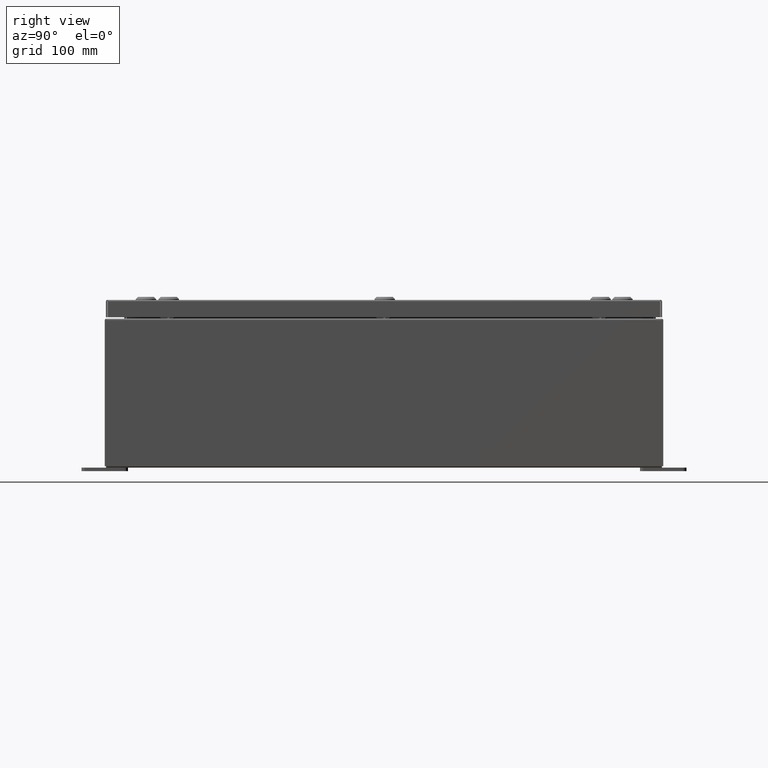
[diagram: clean part render]
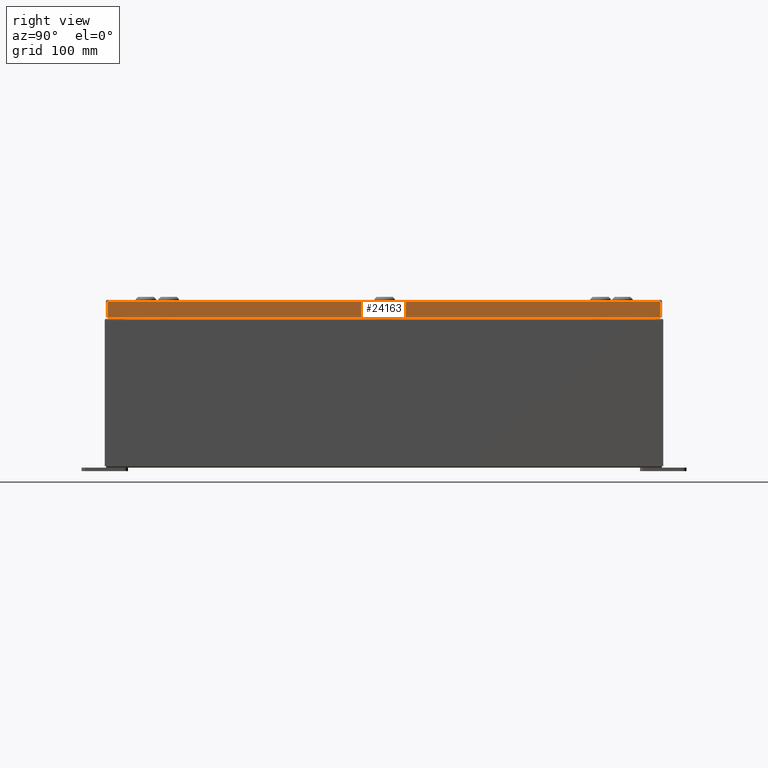
[diagram: same view with one face highlighted and labeled with its STEP entity id]
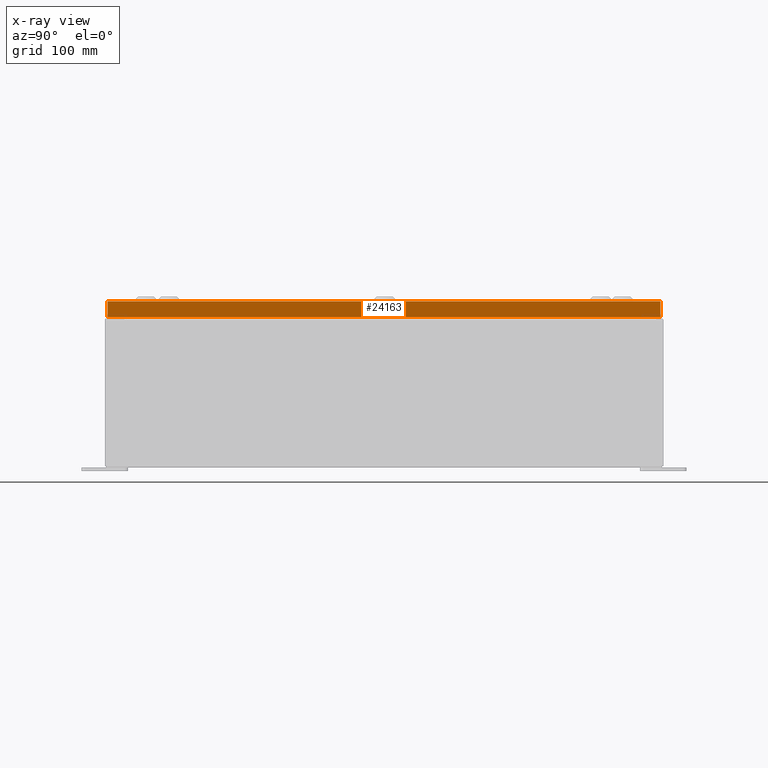
[diagram: x-ray of the same camera — body ghosted, the highlighted face saturated]
A machine part, right view. The second image highlights one B-rep face of the part: STEP entity #24163.
The next image is the same camera in x-ray: the body ghosted, the highlighted face saturated — about 0% of this face is hidden behind the body in this view.
In plain terms, the highlighted planar face has unit normal (1, 0, 0).
Its self-contained STEP definition (entity closure, byte-faithful):
#391 = CARTESIAN_POINT ( 'NONE',  ( 9.937500000000000000, 14.84865786437627800, -0.9376999999999997600 ) ) ;
#2302 = ORIENTED_EDGE ( 'NONE', *, *, #29045, .F. ) ;
#3659 = CARTESIAN_POINT ( 'NONE',  ( 9.937500000000000000, -14.84865786437625900, -0.9376999999999997600 ) ) ;
#3751 = PLANE ( 'NONE',  #23986 ) ;
#3866 = ORIENTED_EDGE ( 'NONE', *, *, #54339, .T. ) ;
#5350 = CARTESIAN_POINT ( 'NONE',  ( 9.937499999999998200, 0.0000000000000000000, -0.08770000000000008300 ) ) ;
#5363 = ORIENTED_EDGE ( 'NONE', *, *, #14456, .F. ) ;
#5750 = VERTEX_POINT ( 'NONE', #3659 ) ;
#8193 = CARTESIAN_POINT ( 'NONE',  ( 9.937499999999998200, 14.84865786437627100, 1.291143603374148100E-013 ) ) ;
#8716 = DIRECTION ( 'NONE',  ( 1.000000000000000000, 0.0000000000000000000, 2.532419924601866100E-015 ) ) ;
#9506 = LINE ( 'NONE', #8193, #47547 ) ;
#9882 = EDGE_CURVE ( 'NONE', #56703, #12730, #9506, .T. ) ;
#12730 = VERTEX_POINT ( 'NONE', #14619 ) ;
#13166 = DIRECTION ( 'NONE',  ( -2.532419924601866100E-015, -6.982962677686265900E-015, 1.000000000000000000 ) ) ;
#13794 = ORIENTED_EDGE ( 'NONE', *, *, #9882, .T. ) ;
#14456 = EDGE_CURVE ( 'NONE', #5750, #40301, #22545, .T. ) ;
#14619 = CARTESIAN_POINT ( 'NONE',  ( 9.937499999999998200, 14.84865786437626900, -0.08770000000000008300 ) ) ;
#19869 = DIRECTION ( 'NONE',  ( -2.532419924601866100E-015, -6.982962677686265900E-015, 1.000000000000000000 ) ) ;
#22545 = LINE ( 'NONE', #34607, #47337 ) ;
#23986 = AXIS2_PLACEMENT_3D ( 'NONE', #33484, #8716, #43471 ) ;
#24163 = ADVANCED_FACE ( 'NONE', ( #48649 ), #3751, .T. ) ;
#29045 = EDGE_CURVE ( 'NONE', #56703, #5750, #63019, .T. ) ;
#29341 = DIRECTION ( 'NONE',  ( 0.0000000000000000000, -1.000000000000000000, 0.0000000000000000000 ) ) ;
#33484 = CARTESIAN_POINT ( 'NONE',  ( 9.937499999999998200, 0.0000000000000000000, 2.542673665674262200E-014 ) ) ;
#34607 = CARTESIAN_POINT ( 'NONE',  ( 9.937499999999998200, -14.84865786437626400, -0.07469999999999980800 ) ) ;
#36007 = VECTOR ( 'NONE', #54520, 39.37007874015748100 ) ;
#38337 = VECTOR ( 'NONE', #29341, 39.37007874015748100 ) ;
#40301 = VERTEX_POINT ( 'NONE', #61291 ) ;
#43471 = DIRECTION ( 'NONE',  ( 2.532419924601866100E-015, 0.0000000000000000000, -1.000000000000000000 ) ) ;
#46816 = EDGE_LOOP ( 'NONE', ( #5363, #2302, #13794, #3866 ) ) ;
#47337 = VECTOR ( 'NONE', #19869, 39.37007874015748100 ) ;
#47547 = VECTOR ( 'NONE', #13166, 39.37007874015748100 ) ;
#48649 = FACE_OUTER_BOUND ( 'NONE', #46816, .T. ) ;
#54339 = EDGE_CURVE ( 'NONE', #12730, #40301, #60681, .T. ) ;
#54520 = DIRECTION ( 'NONE',  ( 0.0000000000000000000, -1.000000000000000000, 0.0000000000000000000 ) ) ;
#56703 = VERTEX_POINT ( 'NONE', #391 ) ;
#60681 = LINE ( 'NONE', #5350, #36007 ) ;
#61291 = CARTESIAN_POINT ( 'NONE',  ( 9.937499999999998200, -14.84865786437626400, -0.08770000000000008300 ) ) ;
#63019 = LINE ( 'NONE', #63895, #38337 ) ;
#63895 = CARTESIAN_POINT ( 'NONE',  ( 9.937500000000000000, -14.93749999999999500, -0.9376999999999997600 ) ) ;